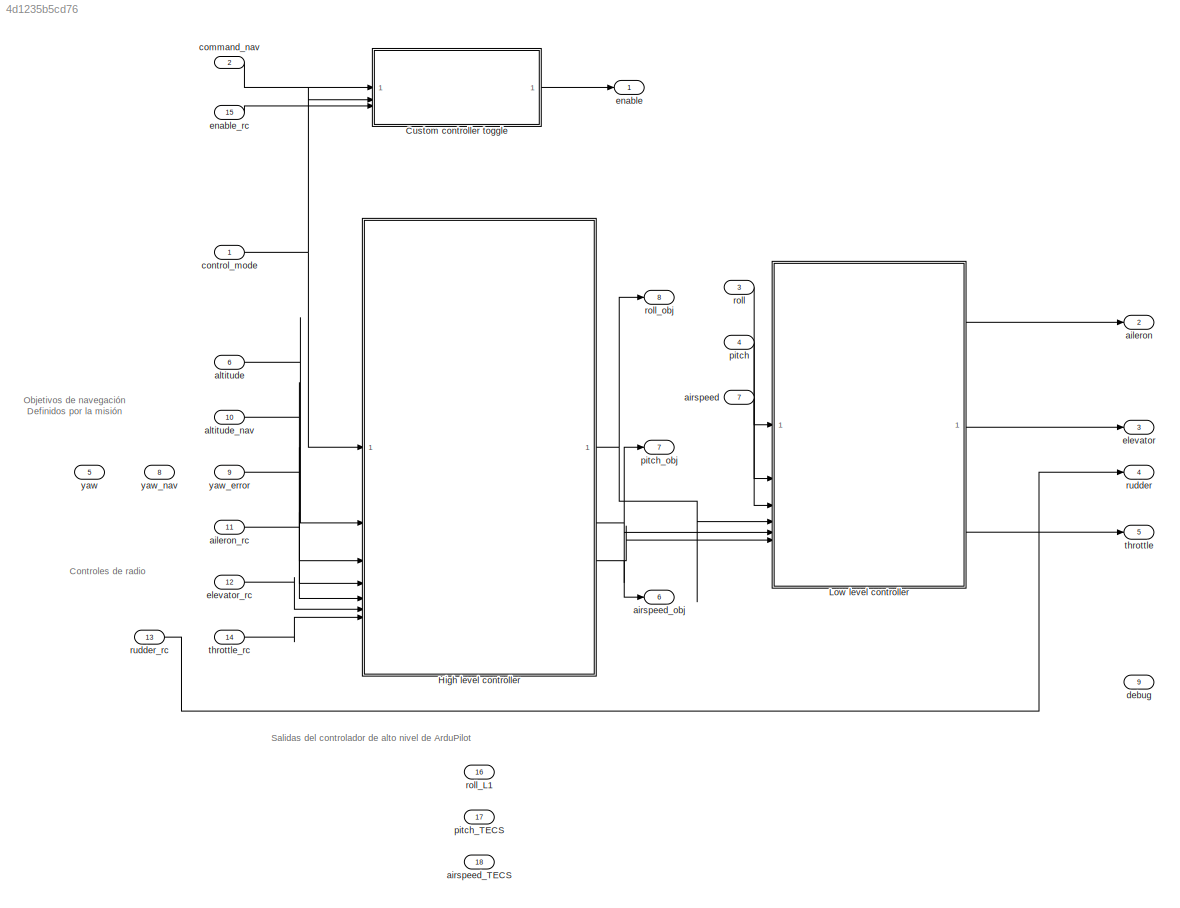
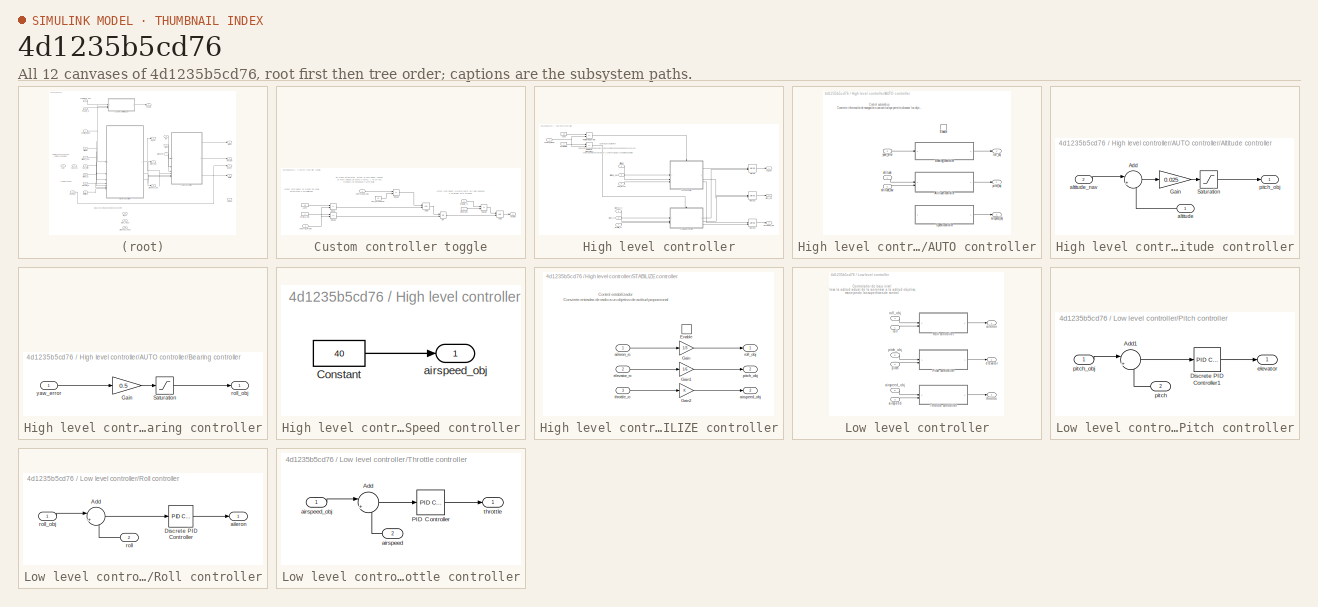
[diagram: thumbnail index - all 12 canvases of the model, root first then tree order]
MODEL slx_4d1235b5cd76
KIND model
CONFIG AbsTol = auto
CONFIG EnableMultiTasking = off
CONFIG FixedStep = 1/100
CONFIG MaxStep = auto
CONFIG MinStep = auto
CONFIG RelTol = 1e-3
CONFIG SampleTimeConstraint = Unconstrained
CONFIG SolverName = FixedStepDiscrete
CONFIG StartTime = 0.0
CONFIG StopTime = inf
WORKSPACE source: mxarray member
WORKSPACE dt: Simulink.Parameter (value not decoded)
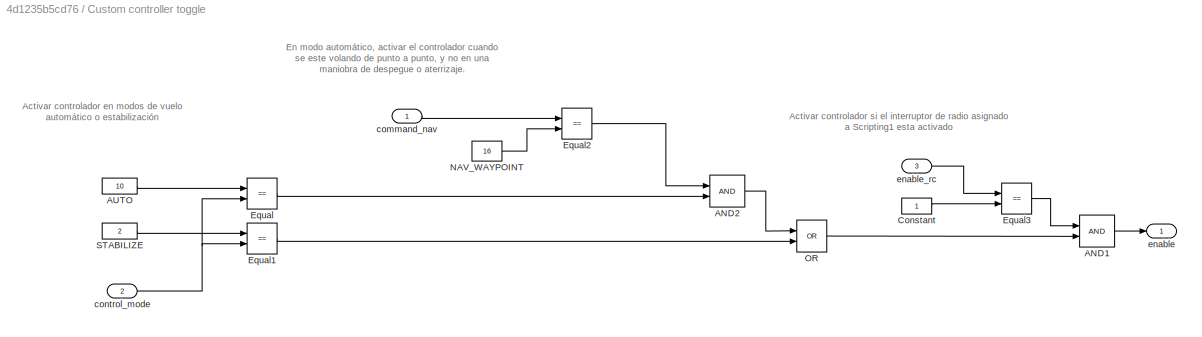
BLOCK [SubSystem] Custom controller toggle
BLOCK [Logic] Custom controller toggle/AND1
  AllPortsSameDT = off
  IconShape = distinctive
  OutDataTypeStr = boolean
BLOCK [Logic] Custom controller toggle/AND2
  AllPortsSameDT = off
  IconShape = distinctive
  OutDataTypeStr = boolean
BLOCK [Constant] Custom controller toggle/AUTO
  OutDataTypeStr = single
  Value = 10
BLOCK [Constant] Custom controller toggle/Constant
  OutDataTypeStr = boolean
BLOCK [RelationalOperator] Custom controller toggle/Equal
  InputSameDT = off
  Operator = ==
  OutDataTypeStr = boolean
  RndMeth = Simplest
BLOCK [RelationalOperator] Custom controller toggle/Equal1
  InputSameDT = off
  Operator = ==
  OutDataTypeStr = boolean
  RndMeth = Simplest
BLOCK [RelationalOperator] Custom controller toggle/Equal2
  InputSameDT = off
  Operator = ==
  OutDataTypeStr = boolean
  RndMeth = Simplest
BLOCK [RelationalOperator] Custom controller toggle/Equal3
  InputSameDT = off
  Operator = ==
  OutDataTypeStr = boolean
  RndMeth = Simplest
BLOCK [Constant] Custom controller toggle/NAV_WAYPOINT
  OutDataTypeStr = single
  Value = 16
BLOCK [Logic] Custom controller toggle/OR
  AllPortsSameDT = off
  IconShape = distinctive
  Operator = OR
  OutDataTypeStr = boolean
BLOCK [Constant] Custom controller toggle/STABILIZE
  OutDataTypeStr = single
  Value = 2
BLOCK [Inport] Custom controller toggle/command_nav
BLOCK [Inport] Custom controller toggle/control_mode
  Port = 2
BLOCK [Outport] Custom controller toggle/enable
BLOCK [Inport] Custom controller toggle/enable_rc
  OutDataTypeStr = boolean
  Port = 3
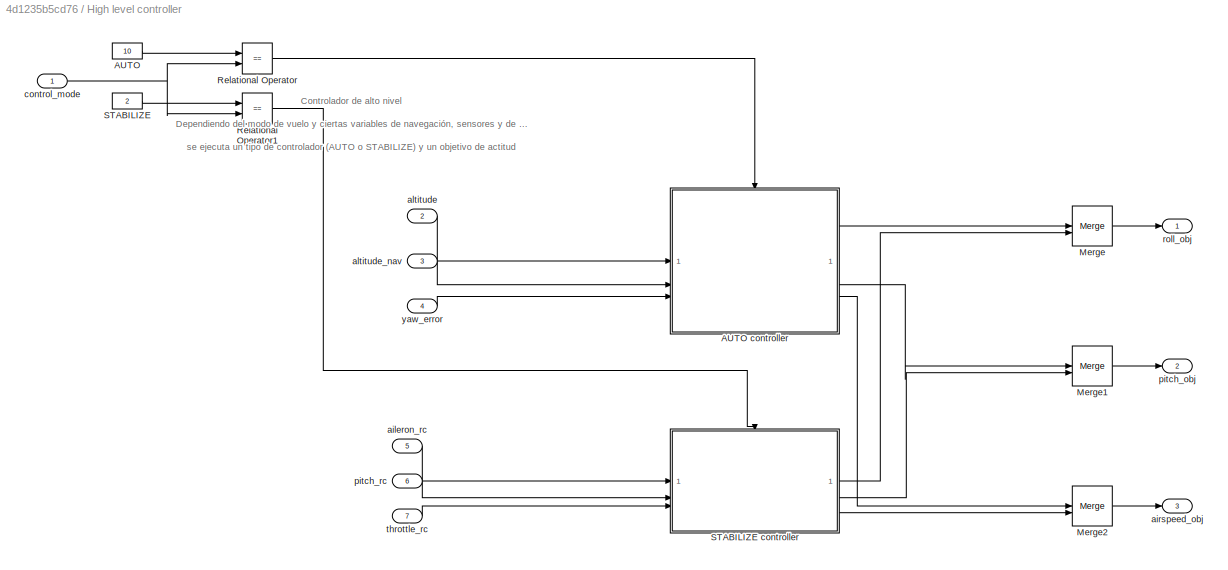
BLOCK [SubSystem] High level controller
BLOCK [Constant] High level controller/AUTO
  Value = 10
BLOCK [SubSystem] High level controller/AUTO controller
BLOCK [SubSystem] High level controller/AUTO controller/Altitude controller
BLOCK [Sum] High level controller/AUTO controller/Altitude controller/Add
  Inputs = |+-
BLOCK [Gain] High level controller/AUTO controller/Altitude controller/Gain
  Gain = 0.025
BLOCK [Saturate] High level controller/AUTO controller/Altitude controller/Saturation
  LowerLimit = -pi/6
  UpperLimit = pi/6
BLOCK [Inport] High level controller/AUTO controller/Altitude controller/altitude
BLOCK [Inport] High level controller/AUTO controller/Altitude controller/altitude_nav
  Port = 2
BLOCK [Outport] High level controller/AUTO controller/Altitude controller/pitch_obj
BLOCK [SubSystem] High level controller/AUTO controller/Bearing controller
BLOCK [Gain] High level controller/AUTO controller/Bearing controller/Gain
  Gain = 0.5
BLOCK [Saturate] High level controller/AUTO controller/Bearing controller/Saturation
  LowerLimit = -pi/4
  UpperLimit = pi/4
BLOCK [Outport] High level controller/AUTO controller/Bearing controller/roll_obj
BLOCK [Inport] High level controller/AUTO controller/Bearing controller/yaw_error
BLOCK [EnablePort] High level controller/AUTO controller/Enable
BLOCK [SubSystem] High level controller/AUTO controller/Speed controller
BLOCK [Constant] High level controller/AUTO controller/Speed controller/Constant
  OutDataTypeStr = single
  Value = 40
BLOCK [Outport] High level controller/AUTO controller/Speed controller/airspeed_obj
BLOCK [Outport] High level controller/AUTO controller/airspeed_obj
  Port = 3
BLOCK [Inport] High level controller/AUTO controller/altitude
  NameLocation = top
BLOCK [Inport] High level controller/AUTO controller/altitude_nav
  Port = 2
BLOCK [Outport] High level controller/AUTO controller/pitch_obj
  Port = 2
BLOCK [Outport] High level controller/AUTO controller/roll_obj
BLOCK [Inport] High level controller/AUTO controller/yaw_error
  Port = 3
BLOCK [Merge] High level controller/Merge
BLOCK [Merge] High level controller/Merge1
BLOCK [Merge] High level controller/Merge2
BLOCK [RelationalOperator] High level controller/Relational Operator
  InputSameDT = off
  Operator = ==
  OutDataTypeStr = boolean
  RndMeth = Simplest
BLOCK [RelationalOperator] High level controller/Relational Operator1
  InputSameDT = off
  Operator = ==
  OutDataTypeStr = boolean
  RndMeth = Simplest
BLOCK [Constant] High level controller/STABILIZE
  Value = 2
BLOCK [SubSystem] High level controller/STABILIZE controller
BLOCK [EnablePort] High level controller/STABILIZE controller/Enable
BLOCK [Gain] High level controller/STABILIZE controller/Gain
  Gain = 1/3
BLOCK [Gain] High level controller/STABILIZE controller/Gain1
  Gain = 1/6
BLOCK [Gain] High level controller/STABILIZE controller/Gain2
BLOCK [Inport] High level controller/STABILIZE controller/aileron_rc
BLOCK [Outport] High level controller/STABILIZE controller/airspeed_obj
  Port = 3
BLOCK [Inport] High level controller/STABILIZE controller/elevator_rc
  Port = 2
BLOCK [Outport] High level controller/STABILIZE controller/pitch_obj
  Port = 2
BLOCK [Outport] High level controller/STABILIZE controller/roll_obj
BLOCK [Inport] High level controller/STABILIZE controller/throttle_rc
  Port = 3
BLOCK [Inport] High level controller/aileron_rc
  Port = 5
BLOCK [Outport] High level controller/airspeed_obj
  Port = 3
BLOCK [Inport] High level controller/altitude
  Port = 2
BLOCK [Inport] High level controller/altitude_nav
  Port = 3
BLOCK [Inport] High level controller/control_mode
BLOCK [Outport] High level controller/pitch_obj
  Port = 2
BLOCK [Inport] High level controller/pitch_rc
  Port = 6
BLOCK [Outport] High level controller/roll_obj
BLOCK [Inport] High level controller/throttle_rc
  Port = 7
BLOCK [Inport] High level controller/yaw_error
  Port = 4
BLOCK [SubSystem] Low level controller
BLOCK [SubSystem] Low level controller/Pitch controller
BLOCK [Sum] Low level controller/Pitch controller/Add1
  Inputs = |+-
BLOCK [Reference] Low level controller/Pitch controller/Discrete PID Controller1  REF=slpidlib/PID Controller
  LibrarySourceBlock = simulink/Discrete/Discrete PID Controller
  SourceBlock = slpidlib/PID Controller
  SourceType = PID 1dof
BLOCK [Outport] Low level controller/Pitch controller/elevator
BLOCK [Inport] Low level controller/Pitch controller/pitch
  Port = 2
BLOCK [Inport] Low level controller/Pitch controller/pitch_obj
BLOCK [SubSystem] Low level controller/Roll controller
BLOCK [Sum] Low level controller/Roll controller/Add
  Inputs = |+-
BLOCK [Reference] Low level controller/Roll controller/Discrete PID Controller  REF=slpidlib/PID Controller
  LibrarySourceBlock = simulink/Discrete/Discrete PID Controller
  SourceBlock = slpidlib/PID Controller
  SourceType = PID 1dof
BLOCK [Outport] Low level controller/Roll controller/aileron
BLOCK [Inport] Low level controller/Roll controller/roll
  Port = 2
BLOCK [Inport] Low level controller/Roll controller/roll_obj
BLOCK [SubSystem] Low level controller/Throttle controller
BLOCK [Sum] Low level controller/Throttle controller/Add
  Inputs = |+-
BLOCK [Reference] Low level controller/Throttle controller/PID Controller  REF=slpidlib/PID Controller
  LibrarySourceBlock = simulink/Continuous/PID Controller
  SourceBlock = slpidlib/PID Controller
  SourceType = PID 1dof
BLOCK [Inport] Low level controller/Throttle controller/airspeed
  Port = 2
BLOCK [Inport] Low level controller/Throttle controller/airspeed_obj
BLOCK [Outport] Low level controller/Throttle controller/throttle
BLOCK [Outport] Low level controller/aileron
BLOCK [Inport] Low level controller/airspeed
  Port = 3
BLOCK [Inport] Low level controller/airspeed_obj
  NameLocation = top
  Port = 6
BLOCK [Outport] Low level controller/elevator
  Port = 2
BLOCK [Inport] Low level controller/pitch
  Port = 2
BLOCK [Inport] Low level controller/pitch_obj
  NameLocation = top
  Port = 5
BLOCK [Inport] Low level controller/roll
BLOCK [Inport] Low level controller/roll_obj
  NameLocation = top
  Port = 4
BLOCK [Outport] Low level controller/throttle
  Port = 3
BLOCK [Outport] aileron
  Port = 2
BLOCK [Inport] aileron_rc
  Port = 11
BLOCK [Inport] airspeed
  OutDataTypeStr = single
  Port = 7
BLOCK [Inport] airspeed_TECS
  Port = 18
BLOCK [Outport] airspeed_obj
  OutDataTypeStr = single
  Port = 6
BLOCK [Inport] altitude
  Port = 6
BLOCK [Inport] altitude_nav
  Port = 10
BLOCK [Inport] command_nav
  Port = 2
BLOCK [Inport] control_mode
  OutDataTypeStr = single
BLOCK [Outport] debug
  Port = 9
BLOCK [Outport] elevator
  Port = 3
BLOCK [Inport] elevator_rc
  Port = 12
BLOCK [Outport] enable
  OutDataTypeStr = boolean
BLOCK [Inport] enable_rc
  OutDataTypeStr = boolean
  Port = 15
BLOCK [Inport] pitch
  Port = 4
BLOCK [Inport] pitch_TECS
  Port = 17
BLOCK [Outport] pitch_obj
  Port = 7
BLOCK [Inport] roll
  Port = 3
BLOCK [Inport] roll_L1
  Port = 16
BLOCK [Outport] roll_obj
  Port = 8
BLOCK [Outport] rudder
  Port = 4
BLOCK [Inport] rudder_rc
  Port = 13
BLOCK [Outport] throttle
  OutDataTypeStr = single
  Port = 5
BLOCK [Inport] throttle_rc
  OutDataTypeStr = single
  Port = 14
BLOCK [Inport] yaw
  Port = 5
BLOCK [Inport] yaw_error
  Port = 9
BLOCK [Inport] yaw_nav
  Port = 8
ANNOTATION (root): Controles de radio
ANNOTATION (root): Objetivos de navegación Definidos por la misión
ANNOTATION (root): Salidas del controlador de alto nivel de ArduPilot
ANNOTATION Custom controller toggle: Activar controlador en modos de vuelo automático o estabilización
ANNOTATION Custom controller toggle: Activar controlador si el interruptor de radio asignado a Scripting1 esta activado
ANNOTATION Custom controller toggle: En modo automático, activar el controlador cuando se este volando de punto a punto, y no en una maniobra de despegue o aterrizaje.
ANNOTATION High level controller: Controlador de alto nivel Dependiendo del modo de vuelo y ciertas variables de navegación, sensores y de radio, se ejecuta un tipo de controlador (AUTO o STABILIZE) y un objetivo de actitud
ANNOTATION High level controller/AUTO controller: Control automático Convierte información de navegación a una actitud que permita alcanzar los objetivos de altura, rumbo y velocidad
ANNOTATION High level controller/STABILIZE controller: Control estabilizador Convierte entradas de radio a un objetivo de actitud proporcional
ANNOTATION Low level controller: Controlador de bajo nivel Lleva la actitud actual de la aeronave a la actitud objetivo, manejando las superficies de control
LINE Custom controller toggle/AND1:1 -> Custom controller toggle/enable:1
LINE Custom controller toggle/AND2:1 -> Custom controller toggle/OR:1
LINE Custom controller toggle/AUTO:1 -> Custom controller toggle/Equal:1
LINE Custom controller toggle/Constant:1 -> Custom controller toggle/Equal3:2
LINE Custom controller toggle/Equal1:1 -> Custom controller toggle/OR:2
LINE Custom controller toggle/Equal2:1 -> Custom controller toggle/AND2:1
LINE Custom controller toggle/Equal3:1 -> Custom controller toggle/AND1:1
LINE Custom controller toggle/Equal:1 -> Custom controller toggle/AND2:2
LINE Custom controller toggle/NAV_WAYPOINT:1 -> Custom controller toggle/Equal2:2
LINE Custom controller toggle/OR:1 -> Custom controller toggle/AND1:2
LINE Custom controller toggle/STABILIZE:1 -> Custom controller toggle/Equal1:1
LINE Custom controller toggle/command_nav:1 -> Custom controller toggle/Equal2:1
NET Custom controller toggle/control_mode:1 -> Custom controller toggle/Equal1:2, Custom controller toggle/Equal:2
LINE Custom controller toggle/enable_rc:1 -> Custom controller toggle/Equal3:1
LINE Custom controller toggle:1 -> enable:1
LINE High level controller/AUTO controller/Altitude controller/Add:1 -> High level controller/AUTO controller/Altitude controller/Gain:1
LINE High level controller/AUTO controller/Altitude controller/Gain:1 -> High level controller/AUTO controller/Altitude controller/Saturation:1
LINE High level controller/AUTO controller/Altitude controller/Saturation:1 -> High level controller/AUTO controller/Altitude controller/pitch_obj:1
LINE High level controller/AUTO controller/Altitude controller/altitude:1 -> High level controller/AUTO controller/Altitude controller/Add:2
LINE High level controller/AUTO controller/Altitude controller/altitude_nav:1 -> High level controller/AUTO controller/Altitude controller/Add:1
LINE High level controller/AUTO controller/Altitude controller:1 -> High level controller/AUTO controller/pitch_obj:1
LINE High level controller/AUTO controller/Bearing controller/Gain:1 -> High level controller/AUTO controller/Bearing controller/Saturation:1
LINE High level controller/AUTO controller/Bearing controller/Saturation:1 -> High level controller/AUTO controller/Bearing controller/roll_obj:1
LINE High level controller/AUTO controller/Bearing controller/yaw_error:1 -> High level controller/AUTO controller/Bearing controller/Gain:1
LINE High level controller/AUTO controller/Bearing controller:1 -> High level controller/AUTO controller/roll_obj:1
LINE High level controller/AUTO controller/Speed controller/Constant:1 -> High level controller/AUTO controller/Speed controller/airspeed_obj:1
LINE High level controller/AUTO controller/Speed controller:1 -> High level controller/AUTO controller/airspeed_obj:1
LINE High level controller/AUTO controller/altitude:1 -> High level controller/AUTO controller/Altitude controller:1
LINE High level controller/AUTO controller/altitude_nav:1 -> High level controller/AUTO controller/Altitude controller:2
LINE High level controller/AUTO controller/yaw_error:1 -> High level controller/AUTO controller/Bearing controller:1
LINE High level controller/AUTO controller:1 -> High level controller/Merge:1
LINE High level controller/AUTO controller:2 -> High level controller/Merge1:1
LINE High level controller/AUTO controller:3 -> High level controller/Merge2:1
LINE High level controller/AUTO:1 -> High level controller/Relational Operator:1
LINE High level controller/Merge1:1 -> High level controller/pitch_obj:1
LINE High level controller/Merge2:1 -> High level controller/airspeed_obj:1
LINE High level controller/Merge:1 -> High level controller/roll_obj:1
LINE High level controller/Relational Operator1:1 -> High level controller/STABILIZE controller:enable
LINE High level controller/Relational Operator:1 -> High level controller/AUTO controller:enable
LINE High level controller/STABILIZE controller/Gain1:1 -> High level controller/STABILIZE controller/pitch_obj:1
LINE High level controller/STABILIZE controller/Gain2:1 -> High level controller/STABILIZE controller/airspeed_obj:1
LINE High level controller/STABILIZE controller/Gain:1 -> High level controller/STABILIZE controller/roll_obj:1
LINE High level controller/STABILIZE controller/aileron_rc:1 -> High level controller/STABILIZE controller/Gain:1
LINE High level controller/STABILIZE controller/elevator_rc:1 -> High level controller/STABILIZE controller/Gain1:1
LINE High level controller/STABILIZE controller/throttle_rc:1 -> High level controller/STABILIZE controller/Gain2:1
LINE High level controller/STABILIZE controller:1 -> High level controller/Merge:2
LINE High level controller/STABILIZE controller:2 -> High level controller/Merge1:2
LINE High level controller/STABILIZE controller:3 -> High level controller/Merge2:2
LINE High level controller/STABILIZE:1 -> High level controller/Relational Operator1:1
LINE High level controller/aileron_rc:1 -> High level controller/STABILIZE controller:1
LINE High level controller/altitude:1 -> High level controller/AUTO controller:1
LINE High level controller/altitude_nav:1 -> High level controller/AUTO controller:2
NET High level controller/control_mode:1 -> High level controller/Relational Operator1:2, High level controller/Relational Operator:2
LINE High level controller/pitch_rc:1 -> High level controller/STABILIZE controller:2
LINE High level controller/throttle_rc:1 -> High level controller/STABILIZE controller:3
LINE High level controller/yaw_error:1 -> High level controller/AUTO controller:3
NET High level controller:1 -> Low level controller:4, roll_obj:1
NET High level controller:2 -> Low level controller:5, pitch_obj:1
NET High level controller:3 -> Low level controller:6, airspeed_obj:1
LINE Low level controller/Pitch controller/Add1:1 -> Low level controller/Pitch controller/Discrete PID Controller1:1
LINE Low level controller/Pitch controller/Discrete PID Controller1:1 -> Low level controller/Pitch controller/elevator:1
LINE Low level controller/Pitch controller/pitch:1 -> Low level controller/Pitch controller/Add1:2
LINE Low level controller/Pitch controller/pitch_obj:1 -> Low level controller/Pitch controller/Add1:1
LINE Low level controller/Pitch controller:1 -> Low level controller/elevator:1
LINE Low level controller/Roll controller/Add:1 -> Low level controller/Roll controller/Discrete PID Controller:1
LINE Low level controller/Roll controller/Discrete PID Controller:1 -> Low level controller/Roll controller/aileron:1
LINE Low level controller/Roll controller/roll:1 -> Low level controller/Roll controller/Add:2
LINE Low level controller/Roll controller/roll_obj:1 -> Low level controller/Roll controller/Add:1
LINE Low level controller/Roll controller:1 -> Low level controller/aileron:1
LINE Low level controller/Throttle controller/Add:1 -> Low level controller/Throttle controller/PID Controller:1
LINE Low level controller/Throttle controller/PID Controller:1 -> Low level controller/Throttle controller/throttle:1
LINE Low level controller/Throttle controller/airspeed:1 -> Low level controller/Throttle controller/Add:2
LINE Low level controller/Throttle controller/airspeed_obj:1 -> Low level controller/Throttle controller/Add:1
LINE Low level controller/Throttle controller:1 -> Low level controller/throttle:1
LINE Low level controller/airspeed:1 -> Low level controller/Throttle controller:2
LINE Low level controller/airspeed_obj:1 -> Low level controller/Throttle controller:1
LINE Low level controller/pitch:1 -> Low level controller/Pitch controller:2
LINE Low level controller/pitch_obj:1 -> Low level controller/Pitch controller:1
LINE Low level controller/roll:1 -> Low level controller/Roll controller:2
LINE Low level controller/roll_obj:1 -> Low level controller/Roll controller:1
LINE Low level controller:1 -> aileron:1
LINE Low level controller:2 -> elevator:1
LINE Low level controller:3 -> throttle:1
LINE aileron_rc:1 -> High level controller:5
LINE airspeed:1 -> Low level controller:3
LINE altitude:1 -> High level controller:2
LINE altitude_nav:1 -> High level controller:3
LINE command_nav:1 -> Custom controller toggle:1
NET control_mode:1 -> Custom controller toggle:2, High level controller:1
LINE elevator_rc:1 -> High level controller:6
LINE enable_rc:1 -> Custom controller toggle:3
LINE pitch:1 -> Low level controller:2
LINE roll:1 -> Low level controller:1
LINE rudder_rc:1 -> rudder:1
LINE throttle_rc:1 -> High level controller:7
LINE yaw_error:1 -> High level controller:4
note: NET lines group one-source signal fan-out (src -> all destinations, sorted); 1:1 wires keep LINE
